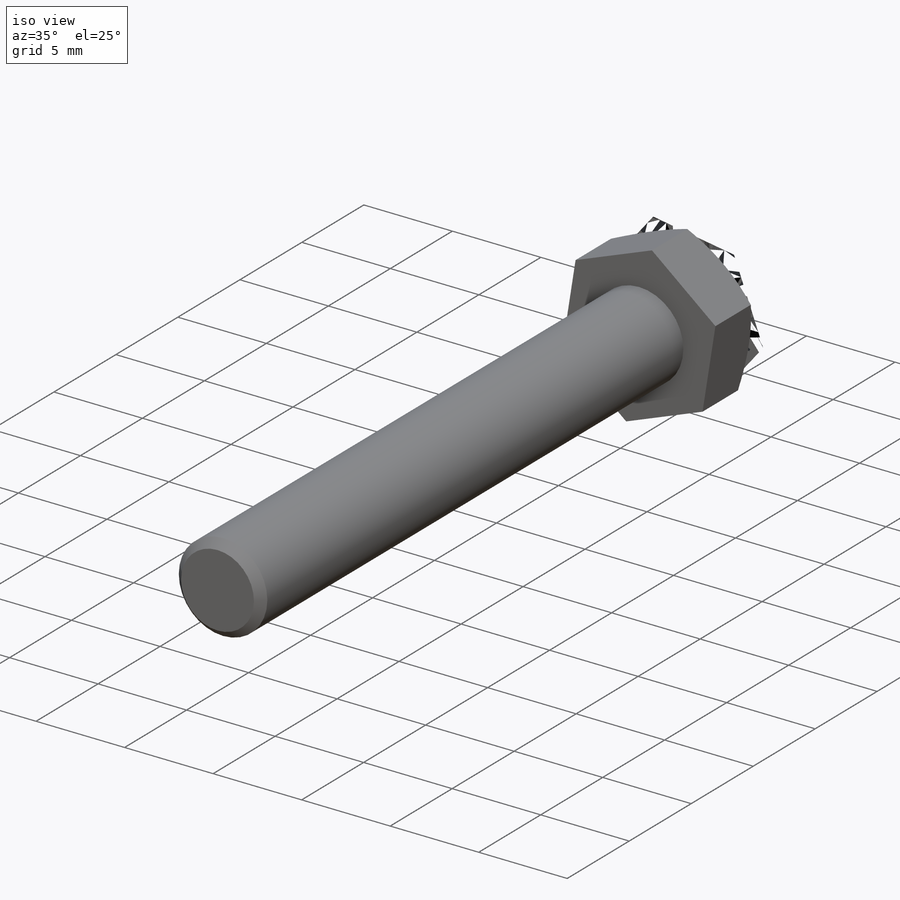
[diagram: iso view]
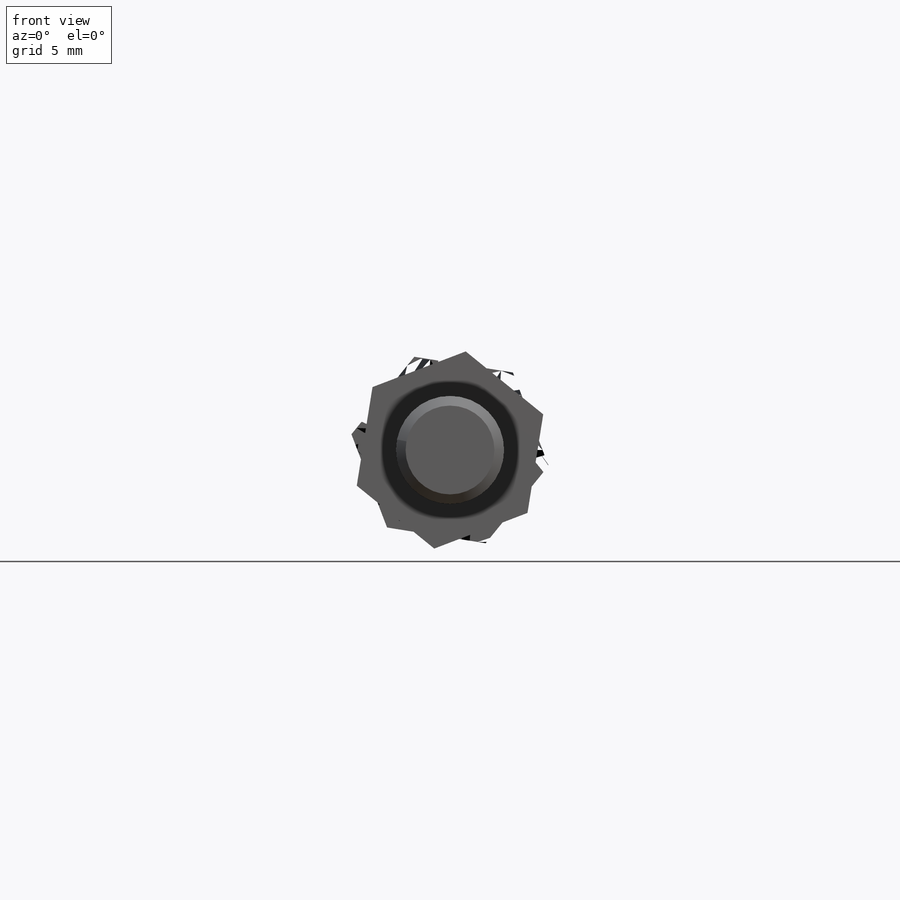
[diagram: front view]
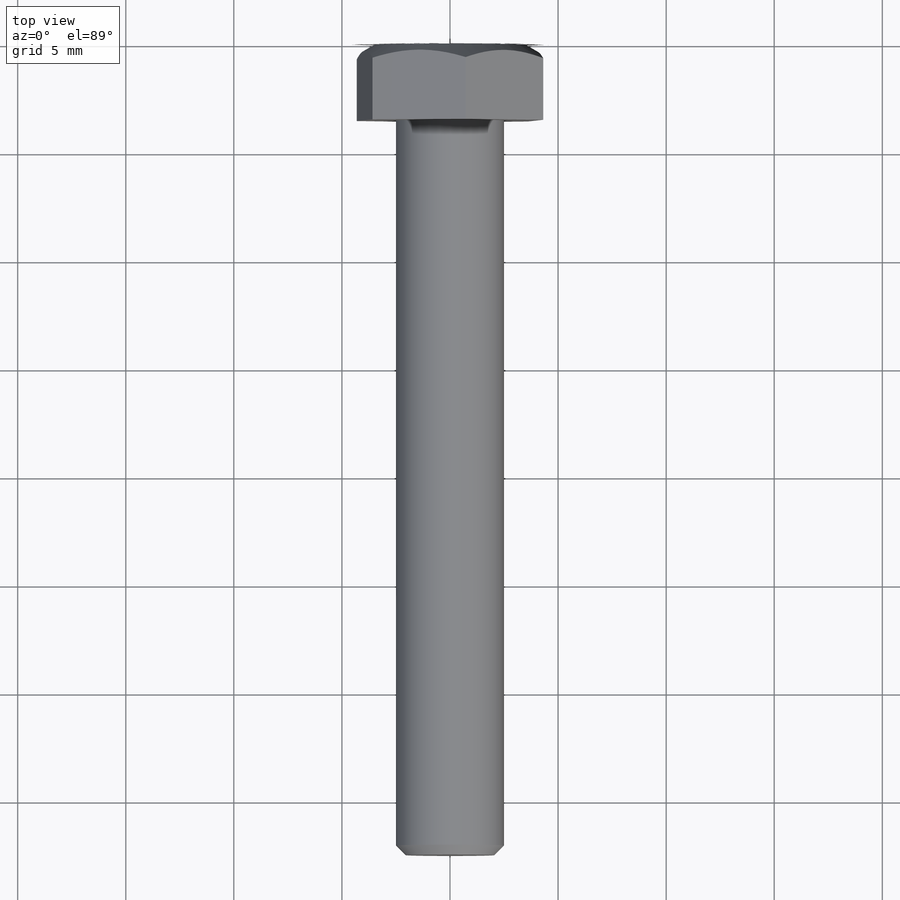
[diagram: top view]
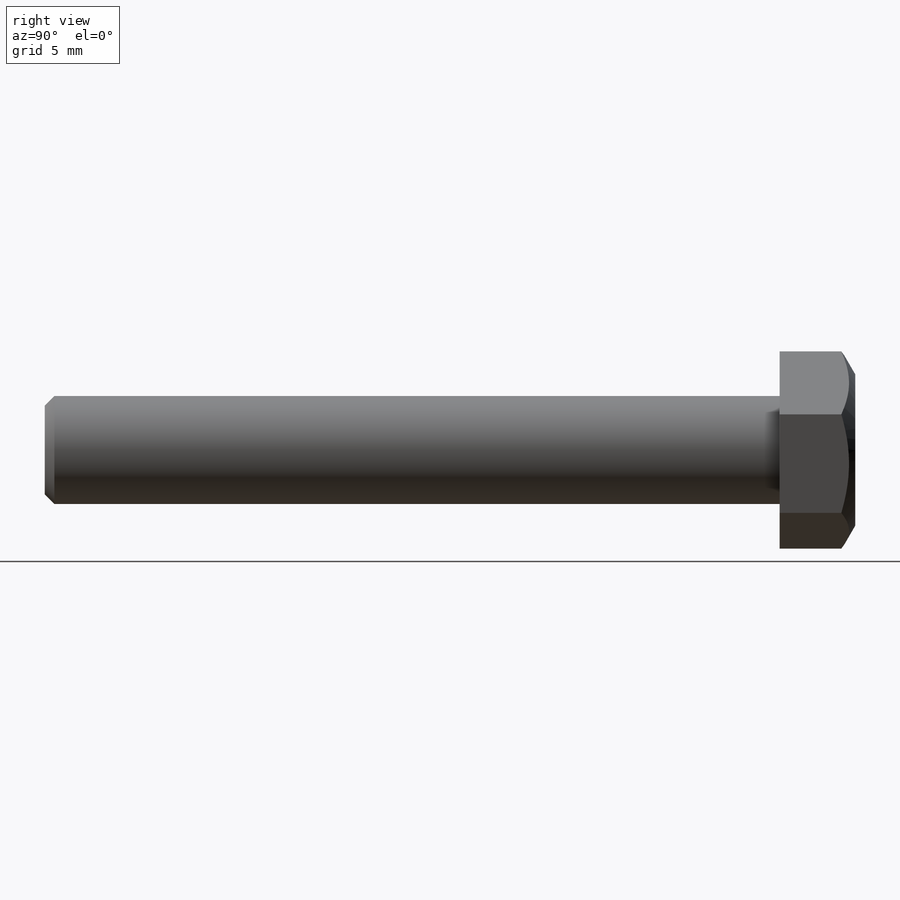
[diagram: right view]
SOLIDWORKS PART (.sldprt)
format: sldprt  version: not decoded by parser v0  size: 244,224 bytes
history: native  units: mm
features: plane x3, sketch x3, extrude x2, material x1, thread x1, chamfer x1, cut_revolve x1 (+9 scaffold rows collapsed)
feature tree (21):
  scaffold x9  (default folders/planes/origin — collapsed)
  material  "Сталь"
  plane  "Спереди"
  plane  "Сверху"
  plane  "Справа"
  sketch  "Эскиз1"  dims[D1=8.0mm]
  extrude  "Бобышка-Вытянуть1"  Depth=3.5mm
  sketch  "Эскиз2"  dims[D1=5.0mm]
  extrude  "Бобышка-Вытянуть2"  [1 undecoded]
  thread  "Условное изображение резьбы1"  Diameter=12mm  [1 undecoded]
  chamfer  "Фаска1"  Distance=0.445mm Angle=45deg
  sketch  "Эскиз4"  dims[c1.D1=3.5mm c1.D2=4.0mm c1.D3=~4.206382mm c2.D3=30.0deg c2.D4=~2.309401mm]
  cut_revolve  "Вырез-Повернуть1"  Angle=360deg
decode coverage: 7 of 8 modeling features carry decoded parameters
note: ~ marks probable driven/reference dimensions
note: 2 parameter values undecoded
note: suppression state not decoded; provenance and decode notes live in map.json
